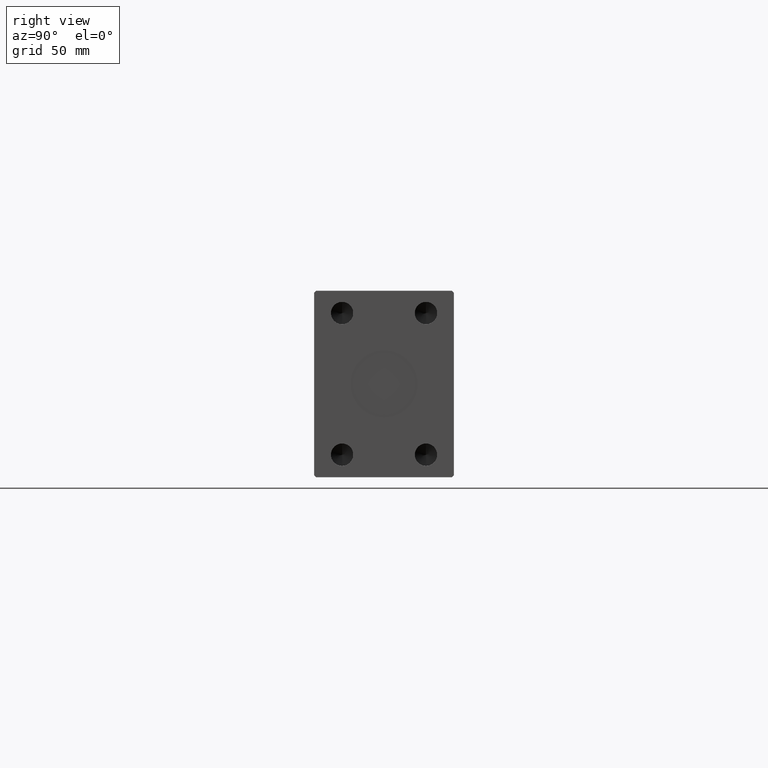
[diagram: clean part render]
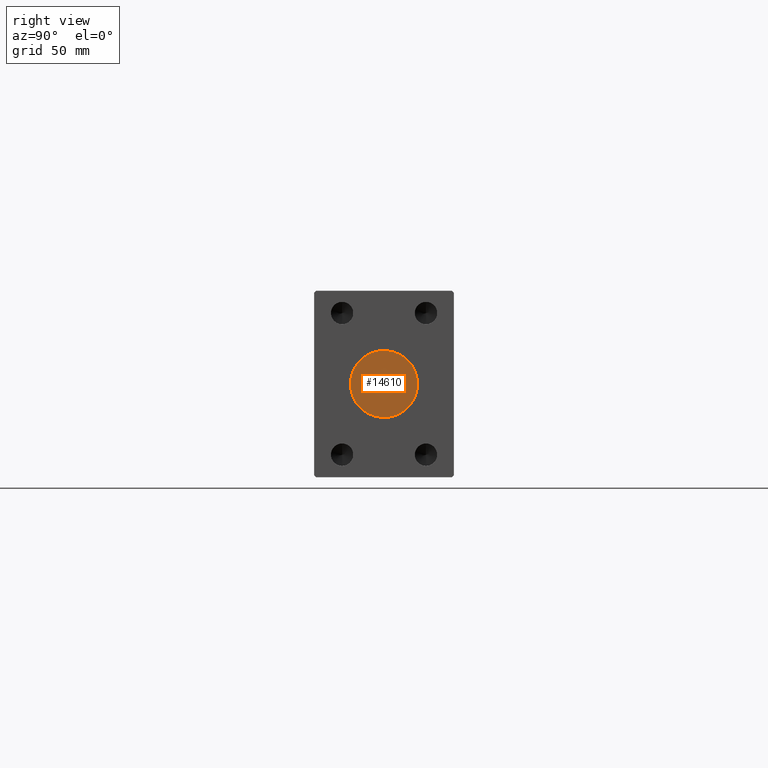
[diagram: same view with one face highlighted and labeled with its STEP entity id]
A machine part, right view. The second image highlights one B-rep face of the part: STEP entity #14610.
In plain terms, the highlighted planar face has unit normal (1, 0, 0).
Its self-contained STEP definition (entity closure, byte-faithful):
#2947 = DIRECTION ( 'NONE',  ( 1.000000000000000000, 0.000000000000000000, 0.000000000000000000 ) ) ;
#3383 = DIRECTION ( 'NONE',  ( 0.000000000000000000, 0.000000000000000000, -1.000000000000000000 ) ) ;
#6328 = EDGE_CURVE ( 'NONE', #39962, #26397, #31383, .T. ) ;
#12066 = AXIS2_PLACEMENT_3D ( 'NONE', #21552, #28925, #39208 ) ;
#13362 = PLANE ( 'NONE',  #19790 ) ;
#14610 = ADVANCED_FACE ( 'NONE', ( #33068 ), #13362, .T. ) ;
#15317 = ORIENTED_EDGE ( 'NONE', *, *, #6328, .T. ) ;
#15429 = CARTESIAN_POINT ( 'NONE',  ( 331.8000000000000114, 2.204364238465235428E-15, 18.00000000000000000 ) ) ;
#16294 = DIRECTION ( 'NONE',  ( 1.000000000000000000, 0.000000000000000000, 0.000000000000000000 ) ) ;
#19790 = AXIS2_PLACEMENT_3D ( 'NONE', #23456, #16294, #29724 ) ;
#19918 = CIRCLE ( 'NONE', #12066, 18.00000000000000000 ) ;
#19975 = EDGE_CURVE ( 'NONE', #26397, #39962, #19918, .T. ) ;
#21552 = CARTESIAN_POINT ( 'NONE',  ( 331.8000000000000114, 0.000000000000000000, 0.000000000000000000 ) ) ;
#23456 = CARTESIAN_POINT ( 'NONE',  ( 331.8000000000000114, 0.000000000000000000, 0.000000000000000000 ) ) ;
#24090 = ORIENTED_EDGE ( 'NONE', *, *, #19975, .T. ) ;
#24701 = EDGE_LOOP ( 'NONE', ( #24090, #15317 ) ) ;
#26397 = VERTEX_POINT ( 'NONE', #26510 ) ;
#26510 = CARTESIAN_POINT ( 'NONE',  ( 331.8000000000000114, 0.000000000000000000, -18.00000000000000000 ) ) ;
#28925 = DIRECTION ( 'NONE',  ( 1.000000000000000000, 0.000000000000000000, 0.000000000000000000 ) ) ;
#29724 = DIRECTION ( 'NONE',  ( 0.000000000000000000, 0.000000000000000000, -1.000000000000000000 ) ) ;
#31383 = CIRCLE ( 'NONE', #38512, 18.00000000000000000 ) ;
#33068 = FACE_OUTER_BOUND ( 'NONE', #24701, .T. ) ;
#38512 = AXIS2_PLACEMENT_3D ( 'NONE', #40995, #2947, #3383 ) ;
#39208 = DIRECTION ( 'NONE',  ( 0.000000000000000000, 0.000000000000000000, -1.000000000000000000 ) ) ;
#39962 = VERTEX_POINT ( 'NONE', #15429 ) ;
#40995 = CARTESIAN_POINT ( 'NONE',  ( 331.8000000000000114, 0.000000000000000000, 0.000000000000000000 ) ) ;